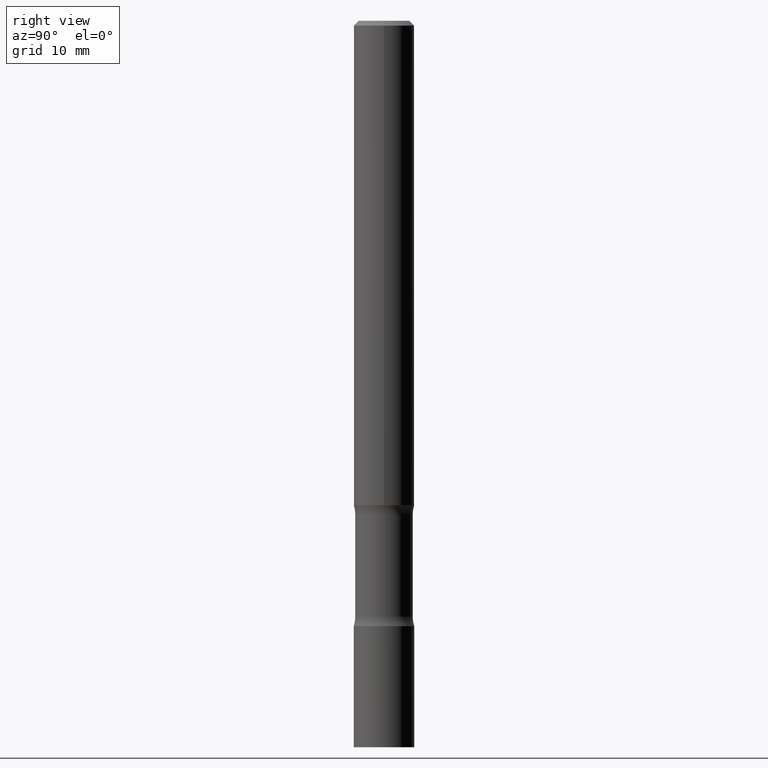
[diagram: clean part render]
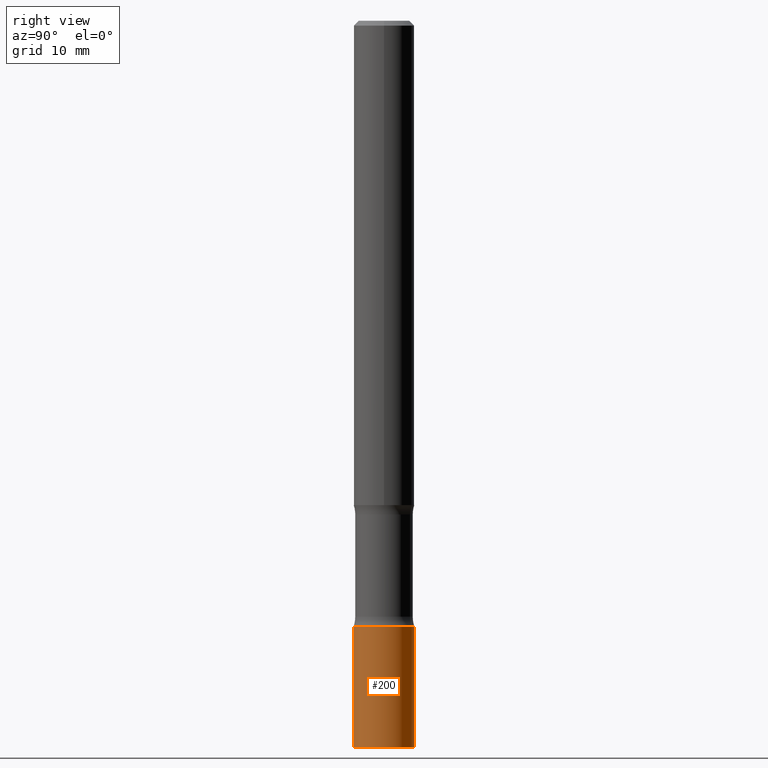
[diagram: same view with one face highlighted and labeled with its STEP entity id]
A machine part, right view. The second image highlights one B-rep face of the part: STEP entity #200.
In plain terms, the highlighted cylindrical surface (edge-blend (fillet) strip) has radius 3.175 mm, axis along (-0, 0, 1).
Its self-contained STEP definition (entity closure, byte-faithful):
#19 = VECTOR ( 'NONE', #399, 39.37007874015748143 ) ;
#23 = DIRECTION ( 'NONE',  ( -6.982962677686265922E-15, -1.000000000000000000, 4.370956789862822727E-15 ) ) ;
#44 = DIRECTION ( 'NONE',  ( -6.982962677686265922E-15, -1.000000000000000000, 4.370956789862822727E-15 ) ) ;
#48 = LINE ( 'NONE', #398, #19 ) ;
#53 = EDGE_LOOP ( 'NONE', ( #288, #355, #321, #76 ) ) ;
#67 = CARTESIAN_POINT ( 'NONE',  ( 7.337557434360752308E-29, -1.047279569638443441E-14, -3.000000000000000444 ) ) ;
#76 = ORIENTED_EDGE ( 'NONE', *, *, #261, .F. ) ;
#96 = EDGE_CURVE ( 'NONE', #445, #118, #457, .T. ) ;
#108 = CARTESIAN_POINT ( 'NONE',  ( 8.881784197001248379E-16, 0.1249999999999999584, -4.363664873493513021E-16 ) ) ;
#117 = EDGE_CURVE ( 'NONE', #333, #445, #410, .T. ) ;
#118 = VERTEX_POINT ( 'NONE', #184 ) ;
#127 = CYLINDRICAL_SURFACE ( 'NONE', #441, 0.1249999999999999584 ) ;
#128 = CIRCLE ( 'NONE', #489, 0.1249999999999999584 ) ;
#150 = DIRECTION ( 'NONE',  ( -2.445852478120250956E-29, 3.490931898794811600E-15, 1.000000000000000000 ) ) ;
#179 = VERTEX_POINT ( 'NONE', #267 ) ;
#184 = CARTESIAN_POINT ( 'NONE',  ( 8.881784197001982020E-16, 0.1249999999999912292, -2.500000000000000444 ) ) ;
#197 = DIRECTION ( 'NONE',  ( -2.445852478120250956E-29, 3.490931898794811600E-15, 1.000000000000000000 ) ) ;
#200 = ADVANCED_FACE ( 'NONE', ( #394 ), #127, .T. ) ;
#201 = DIRECTION ( 'NONE',  ( -6.982962677686265922E-15, -1.000000000000000000, 3.490931898794811600E-15 ) ) ;
#206 = CARTESIAN_POINT ( 'NONE',  ( 8.881784197001922855E-16, 0.1249999999999894945, -3.000000000000000888 ) ) ;
#240 = EDGE_CURVE ( 'NONE', #179, #118, #128, .T. ) ;
#244 = CARTESIAN_POINT ( 'NONE',  ( 0.000000000000000000, 0.000000000000000000, 0.000000000000000000 ) ) ;
#261 = EDGE_CURVE ( 'NONE', #333, #179, #48, .T. ) ;
#267 = CARTESIAN_POINT ( 'NONE',  ( -8.728703347107218077E-16, -0.1250000000000086875, -2.499999999999999556 ) ) ;
#288 = ORIENTED_EDGE ( 'NONE', *, *, #117, .T. ) ;
#320 = CARTESIAN_POINT ( 'NONE',  ( -8.728703347107095803E-16, -0.1250000000000104361, -2.999999999999999556 ) ) ;
#321 = ORIENTED_EDGE ( 'NONE', *, *, #240, .F. ) ;
#333 = VERTEX_POINT ( 'NONE', #320 ) ;
#355 = ORIENTED_EDGE ( 'NONE', *, *, #96, .T. ) ;
#357 = CARTESIAN_POINT ( 'NONE',  ( 6.114631195300628231E-29, -8.727329746987029987E-15, -2.500000000000000000 ) ) ;
#361 = DIRECTION ( 'NONE',  ( -2.445852478120250956E-29, 3.490931898794811600E-15, 1.000000000000000000 ) ) ;
#368 = VECTOR ( 'NONE', #501, 39.37007874015748143 ) ;
#385 = AXIS2_PLACEMENT_3D ( 'NONE', #67, #150, #23 ) ;
#394 = FACE_OUTER_BOUND ( 'NONE', #53, .T. ) ;
#398 = CARTESIAN_POINT ( 'NONE',  ( -8.728703347107829444E-16, -0.1249999999999999584, 4.363664873493513021E-16 ) ) ;
#399 = DIRECTION ( 'NONE',  ( -2.445852478120250956E-29, 3.490931898794811995E-15, 1.000000000000000000 ) ) ;
#410 = CIRCLE ( 'NONE', #385, 0.1249999999999999584 ) ;
#441 = AXIS2_PLACEMENT_3D ( 'NONE', #244, #197, #201 ) ;
#445 = VERTEX_POINT ( 'NONE', #206 ) ;
#457 = LINE ( 'NONE', #108, #368 ) ;
#489 = AXIS2_PLACEMENT_3D ( 'NONE', #357, #361, #44 ) ;
#501 = DIRECTION ( 'NONE',  ( -2.445852478120250956E-29, 3.490931898794811995E-15, 1.000000000000000000 ) ) ;